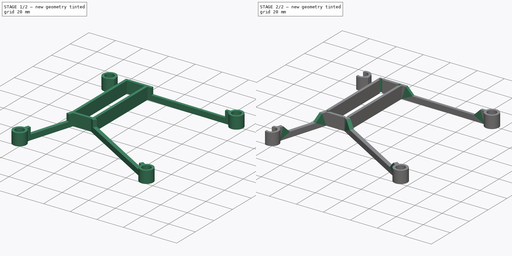
[diagram: build sequence overview — one tinted view per stage of 2, left to right]
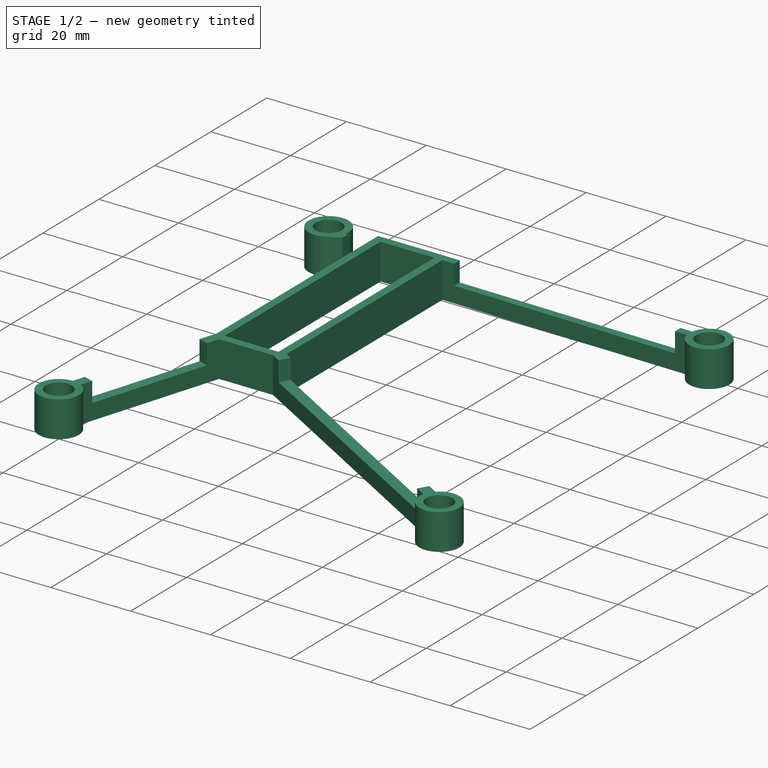
[diagram: stage 1 of 2 — iso view after this stage's code; geometry added in this stage tinted green]
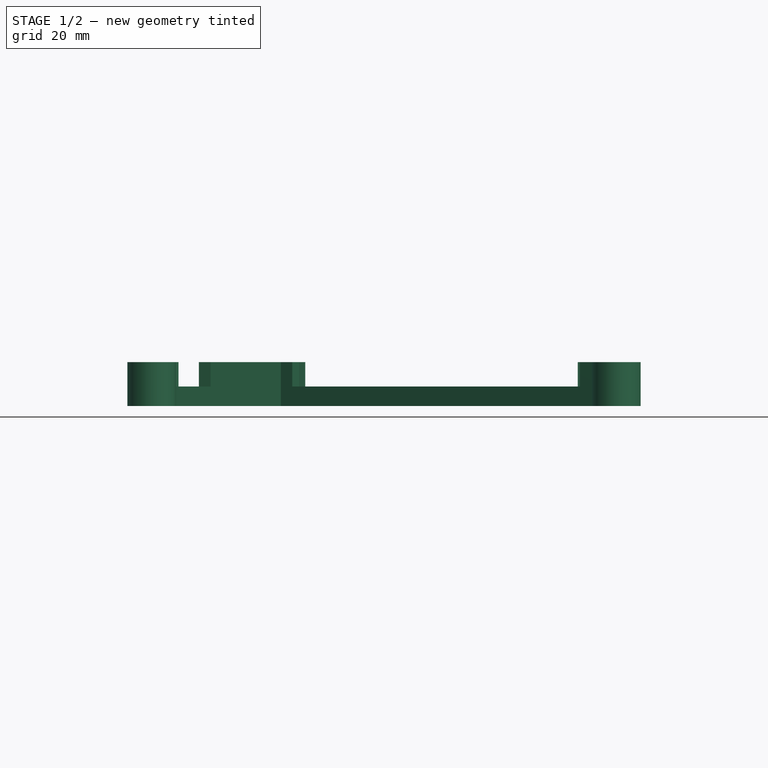
[diagram: stage 1 of 2 — front view after this stage's code; geometry added in this stage tinted green]
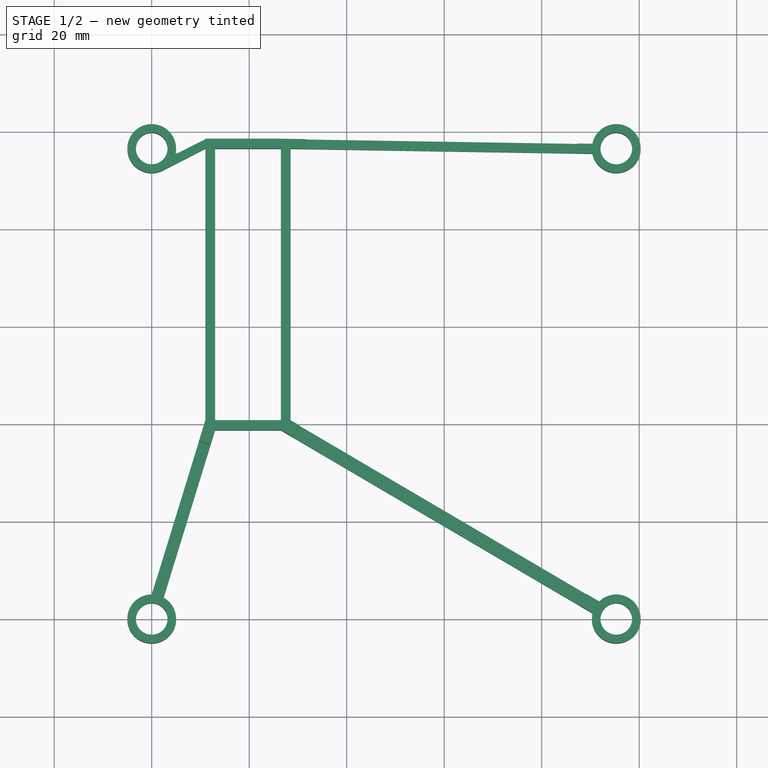
[diagram: stage 1 of 2 — top view after this stage's code; geometry added in this stage tinted green]
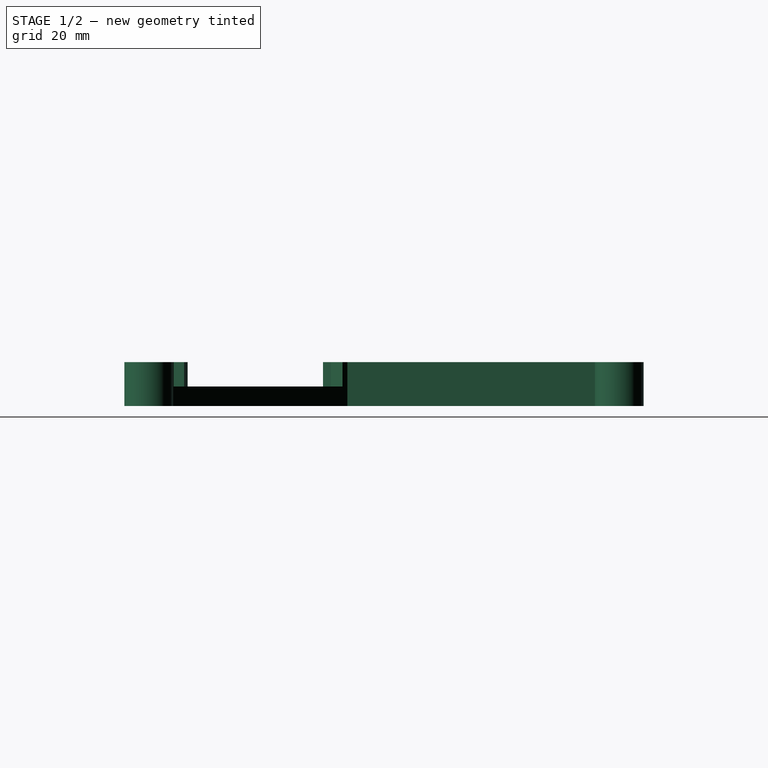
[diagram: stage 1 of 2 — right view after this stage's code; geometry added in this stage tinted green]
FCSTD DOCUMENT  (FreeCAD 0.17R13528 (Git))
Label: heatsink_mount_v0.3
License: CreativeCommons Attribution-ShareAlike
LicenseURL: http://creativecommons.org/licenses/by-sa/4.0/
objects: Sketcher::SketchObject×3, PartDesign::Pocket×2, PartDesign::Pad×1, PartDesign::Chamfer×1, PartDesign::Body×1
note: 11 computed .brp shape members not serialized (recipe doc carries the construction recipe); baked Part::Feature solids carry a one-line shape summary decoded from their .brp

FEATURE [Sketcher::SketchObject] Sketch
  MapMode = 5
  Support = -> [XY_Plane]
  sketch-geometry (36):
    g0: LineSegment [constr] StartX=0 StartY=0 StartZ=0 EndX=95.3 EndY=0 EndZ=0
    g1: LineSegment [constr] StartX=95.3 StartY=0 StartZ=0 EndX=95.3 EndY=96.5 EndZ=0
    g2: LineSegment [constr] StartX=95.3 StartY=96.5 StartZ=0 EndX=0 EndY=96.5 EndZ=0
    g3: LineSegment [constr] StartX=0 StartY=96.5 StartZ=0 EndX=0 EndY=0 EndZ=0
    g4: Circle CenterX=0 CenterY=96.5 CenterZ=0 NormalX=0 NormalY=0 NormalZ=1 AngleXU=0 Radius=3.25
    g5: Circle CenterX=95.3 CenterY=96.5 CenterZ=0 NormalX=0 NormalY=0 NormalZ=1 AngleXU=0 Radius=3.25
    g6: Circle CenterX=95.3 CenterY=0 CenterZ=0 NormalX=0 NormalY=0 NormalZ=1 AngleXU=0 Radius=3.25
    g7: Circle CenterX=0 CenterY=0 CenterZ=0 NormalX=0 NormalY=0 NormalZ=1 AngleXU=0 Radius=3.25
    g8: LineSegment StartX=13 StartY=96.5 StartZ=0 EndX=26.5 EndY=96.5 EndZ=0
    g9: LineSegment StartX=26.5 StartY=96.5 StartZ=0 EndX=26.5 EndY=40.75 EndZ=0
    g10: LineSegment StartX=26.5 StartY=40.75 StartZ=0 EndX=13 EndY=40.75 EndZ=0
    g11: LineSegment StartX=13 StartY=40.75 StartZ=0 EndX=13 EndY=96.5 EndZ=0
    g12: ArcOfCircle CenterX=0 CenterY=96.5 CenterZ=0 NormalX=0 NormalY=0 NormalZ=1 AngleXU=0 Radius=5 StartAngle=6.05571 EndAngle=11.4674
    g13: ArcOfCircle CenterX=95.3 CenterY=96.5 CenterZ=0 NormalX=0 NormalY=0 NormalZ=1 AngleXU=0 Radius=5 StartAngle=3.34295 EndAngle=9.22999
    g14: ArcOfCircle CenterX=95.3 CenterY=0 CenterZ=0 NormalX=0 NormalY=0 NormalZ=1 AngleXU=0 Radius=5 StartAngle=2.90081 EndAngle=8.62938
    g15: ArcOfCircle CenterX=0 CenterY=0 CenterZ=0 NormalX=0 NormalY=0 NormalZ=1 AngleXU=0 Radius=5 StartAngle=1.5708 EndAngle=7.34814
    g16: LineSegment StartX=2.27273 StartY=92.0464 StartZ=0 EndX=11 EndY=96.5 EndZ=0
    g17: LineSegment StartX=11 StartY=96.5 StartZ=0 EndX=11 EndY=40.75 EndZ=0
    g18: LineSegment StartX=11 StartY=40.75 StartZ=0 EndX=0 EndY=5 EndZ=0
    g19: LineSegment StartX=2.42272 StartY=4.37384 StartZ=0 EndX=13 EndY=38.75 EndZ=0
    g20: LineSegment StartX=13 StartY=38.75 StartZ=0 EndX=26.5 EndY=38.75 EndZ=0
    g21: LineSegment StartX=26.5 StartY=38.75 StartZ=0 EndX=90.4442 EndY=1.19232 EndZ=0
    g22: LineSegment StartX=91.8 StartY=3.57071 StartZ=0 EndX=28.5 EndY=40.75 EndZ=0
    g23: LineSegment StartX=28.5 StartY=40.75 StartZ=0 EndX=28.5 EndY=96.5 EndZ=0
    g24: LineSegment StartX=28.5 StartY=96.5 StartZ=0 EndX=90.401 EndY=95.5 EndZ=0
    g25: LineSegment StartX=90.3946 StartY=97.4678 StartZ=0 EndX=26.5 EndY=98.5 EndZ=0
    g26: LineSegment StartX=26.5 StartY=98.5 StartZ=0 EndX=11 EndY=98.5 EndZ=0
    g27: LineSegment StartX=11 StartY=98.5 StartZ=0 EndX=4.87119 EndY=95.3724 EndZ=0
    g28: LineSegment [constr] StartX=13 StartY=40.75 StartZ=0 EndX=11 EndY=40.75 EndZ=0
    g29: LineSegment [constr] StartX=11 StartY=40.75 StartZ=0 EndX=11 EndY=38.75 EndZ=0
    g30: LineSegment [constr] StartX=11 StartY=38.75 StartZ=0 EndX=13 EndY=38.75 EndZ=0
    g31: LineSegment [constr] StartX=13 StartY=38.75 StartZ=0 EndX=13 EndY=40.75 EndZ=0
    g32: LineSegment [constr] StartX=26.5 StartY=40.75 StartZ=0 EndX=28.5 EndY=40.75 EndZ=0
    g33: LineSegment [constr] StartX=28.5 StartY=40.75 StartZ=0 EndX=28.5 EndY=38.75 EndZ=0
    g34: LineSegment [constr] StartX=28.5 StartY=38.75 StartZ=0 EndX=26.5 EndY=38.75 EndZ=0
    g35: LineSegment [constr] StartX=26.5 StartY=38.75 StartZ=0 EndX=26.5 EndY=40.75 EndZ=0
  constraints (96):
    c: Coincident(g0,g1)
    c: Coincident(g1,g2)
    c: Coincident(g2,g3)
    c: Coincident(g3,g0)
    c: Horizontal(g0)
    c: Vertical(g1)
    c: Vertical(g3)
    c: Coincident(g0,g-1)
    c: DistanceX(g0,g0) = 95.3
    c: DistanceY(g3,g3) = 96.5
    c: Coincident(g0,g7)
    c: Coincident(g0,g6)
    c: Coincident(g1,g5)
    c: Coincident(g2,g4)
    c: Radius(g4) = 3.25
    c: Equal(g4,g5)
    c: Equal(g4,g6)
    c: Equal(g4,g7)
    c: Coincident(g8,g9)
    c: Coincident(g9,g10)
    c: Coincident(g10,g11)
    c: Coincident(g11,g8)
    c: Horizontal(g8)
    c: Horizontal(g10)
    c: Vertical(g9)
    c: Vertical(g11)
    c: DistanceY(g9,g9) = 55.75
    c: DistanceX(g8,g8) = 13.5
    c: DistanceX(g2,g8) = 13
    c: Coincident(g16,g17)
    c: Coincident(g17,g18)
    c: Coincident(g19,g20)
    c: Coincident(g20,g21)
    c: Coincident(g22,g23)
    c: Coincident(g23,g24)
    c: Coincident(g25,g26)
    c: Coincident(g26,g27)
    c: Coincident(g12,g27)
    c: Horizontal(g26)
    c: Vertical(g17)
    c: Vertical(g23)
    c: Horizontal(g20)
    c: Coincident(g15,g18)
    c: Coincident(g15,g19)
    c: Coincident(g14,g21)
    c: Coincident(g14,g22)
    c: Coincident(g13,g25)
    c: Coincident(g1,g13)
    c: Coincident(g2,g12)
    c: Coincident(g0,g15)
    c: Coincident(g0,g14)
    c: Radius(g14) = 5
    c: Equal(g15,g14)
    c: Equal(g14,g13)
    c: Equal(g13,g12)
    c: Tangent(g12,g16) = -1.5708
    c: Parallel(g19,g18)
    c: Parallel(g21,g22)
    c: DistanceY(g20,g9) = 2
    c: DistanceX(g9,g22) = 2
    c: DistanceY(g8,g25) = 2
    c: DistanceX(g17,g19) = 2
    c: Coincident(g28,g29)
    c: Coincident(g29,g30)
    c: Coincident(g30,g31)
    c: Coincident(g31,g28)
    c: Horizontal(g28)
    c: Horizontal(g30)
    c: Vertical(g29)
    c: Vertical(g31)
    c: Coincident(g32,g33)
    c: Coincident(g33,g34)
    c: Coincident(g34,g35)
    c: Coincident(g35,g32)
    c: Horizontal(g32)
    c: Horizontal(g34)
    c: Vertical(g33)
    c: Vertical(g35)
    c: Coincident(g9,g32)
    c: Coincident(g22,g32)
    c: Coincident(g20,g34)
    c: Coincident(g17,g28)
    c: Coincident(g10,g28)
    c: Coincident(g19,g30)
    c: DistanceY(g16) = 96.5
    c: DistanceY(g16,g26) = 2
    c: Parallel(g24,g25)
    c: Parallel(g27,g16)
    c: DistanceX(g16,g26) = 0
    c: DistanceX(g25,g8) = 0
    c: PointOnObject(g15,g3)
    c: DistanceX(g14,g0) = 3.5
    c: Horizontal(g2)
    c: Coincident(g13,g24)
    c: PointOnObject(g23,g2)
    c: DistanceY(g13,g1) = 1
FEATURE [PartDesign::Pad] Pad
  Length = 9
  Length2 = 100
  Profile = -> Sketch
  Refine = true
  Type = 0
FEATURE [Sketcher::SketchObject] Sketch001
  ExternalGeometry = -> [Pad]
  MapMode = 5
  Placement = pos=(0,0,9) rot=(0,0,1;0rad)
  sketch-geometry (16):
    g0: LineSegment StartX=31.5 StartY=98.4192 StartZ=0 EndX=87.401 EndY=97.5162 EndZ=0
    g1: LineSegment StartX=87.401 StartY=97.5162 StartZ=0 EndX=87.401 EndY=95.5485 EndZ=0
    g2: LineSegment StartX=87.401 StartY=95.5485 StartZ=0 EndX=31.5 EndY=96.4515 EndZ=0
    g3: LineSegment StartX=31.5 StartY=96.4515 StartZ=0 EndX=31.5 EndY=98.4192 EndZ=0
    g4: LineSegment StartX=11 StartY=96.5 StartZ=0 EndX=11 EndY=98.5 EndZ=0
    g5: LineSegment StartX=30.2245 StartY=39.7371 StartZ=0 EndX=89.2132 EndY=5.09007 EndZ=0
    g6: LineSegment StartX=89.2132 StartY=5.09007 StartZ=0 EndX=87.8268 EndY=2.72967 EndZ=0
    g7: LineSegment StartX=87.8268 StartY=2.72967 StartZ=0 EndX=28.8381 EndY=37.3767 EndZ=0
    g8: LineSegment StartX=28.8381 StartY=37.3767 StartZ=0 EndX=30.2245 EndY=39.7371 EndZ=0
    g9: LineSegment StartX=0.915787 StartY=7.97631 StartZ=0 EndX=3.30498 EndY=7.24117 EndZ=0
    g10: LineSegment StartX=3.30498 StartY=7.24117 StartZ=0 EndX=12.0769 EndY=35.75 EndZ=0
    g11: LineSegment StartX=12.0769 StartY=35.75 StartZ=0 EndX=9.68773 EndY=36.4851 EndZ=0
    g12: LineSegment StartX=9.68773 StartY=36.4851 StartZ=0 EndX=0.915787 EndY=7.97631 EndZ=0
    g13: LineSegment StartX=11 StartY=98.5 StartZ=0 EndX=5.5 EndY=95.6933 EndZ=0
    g14: LineSegment StartX=5.5 StartY=95.6933 StartZ=0 EndX=5.5 EndY=93.6933 EndZ=0
    g15: LineSegment StartX=5.5 StartY=93.6933 StartZ=0 EndX=11 EndY=96.5 EndZ=0
  constraints (47):
    c: Coincident(g0,g1)
    c: Coincident(g1,g2)
    c: Coincident(g2,g3)
    c: Coincident(g3,g0)
    c: Coincident(g5,g6)
    c: Coincident(g6,g7)
    c: Coincident(g7,g8)
    c: Coincident(g8,g5)
    c: Coincident(g9,g10)
    c: Coincident(g10,g11)
    c: Coincident(g11,g12)
    c: Coincident(g12,g9)
    c: Perpendicular(g8,g5)
    c: Perpendicular(g10,g11)
    c: Perpendicular(g9,g10)
    c: Vertical(g4)
    c: Vertical(g1)
    c: Vertical(g3)
    c: Coincident(g13,g14)
    c: Coincident(g14,g15)
    c: Coincident(g4,g15)
    c: Coincident(g4,g13)
    c: Parallel(g15,g13)
    c: DistanceX(g13,g13) = 5.5
    c: Vertical(g14)
    c: PointOnObject(g7,g-9)
    c: PointOnObject(g6,g-9)
    c: PointOnObject(g5,g-8)
    c: PointOnObject(g5,g-8)
    c: Distance(g5,g-8) = 2
    c: Distance(g-8,g5) = 3
    c: PointOnObject(g9,g-6)
    c: PointOnObject(g9,g-7)
    c: PointOnObject(g10,g-6)
    c: PointOnObject(g11,g-7)
    c: PointOnObject(g14,g-5)
    c: PointOnObject(g1,g-4)
    c: PointOnObject(g0,g-10)
    c: PointOnObject(g2,g-4)
    c: PointOnObject(g0,g-10)
    c: DistanceX(g-4,g2) = 3
    c: DistanceX(g1,g-4) = 3
    c: Coincident(g4,g-5)
    c: Coincident(g4,g-3)
    c: DistanceY(g10,g-6) = 3
    c: Distance(g-6,g9) = 3
    c: Perpendicular(g5,g6)
FEATURE [PartDesign::Pocket] Pocket
  BaseFeature = -> Pad
  Length = 5
  Length2 = 100
  Profile = -> Sketch001
  Refine = true
  Type = 0
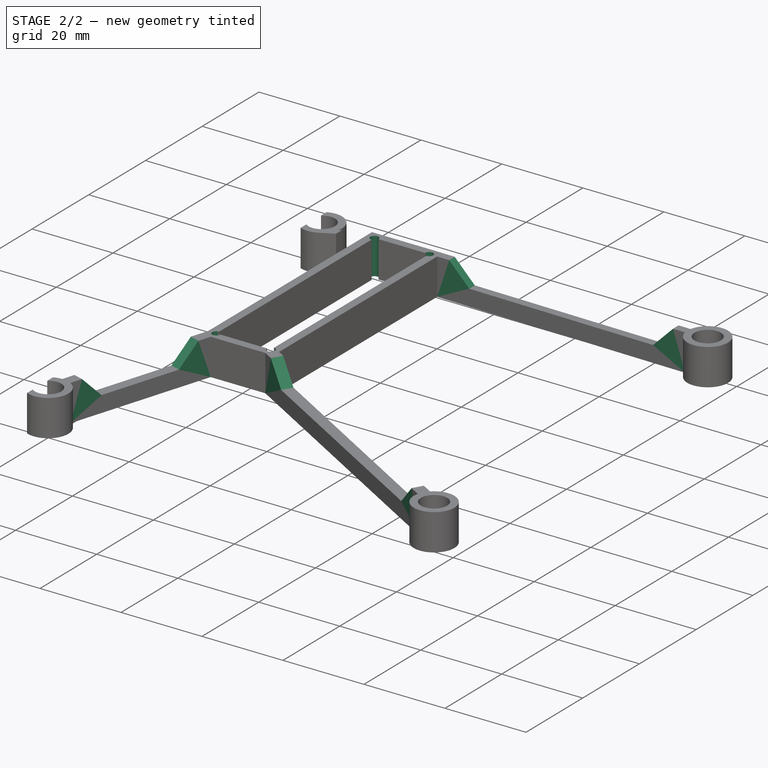
[diagram: stage 2 of 2 — iso view after this stage's code; geometry added in this stage tinted green]
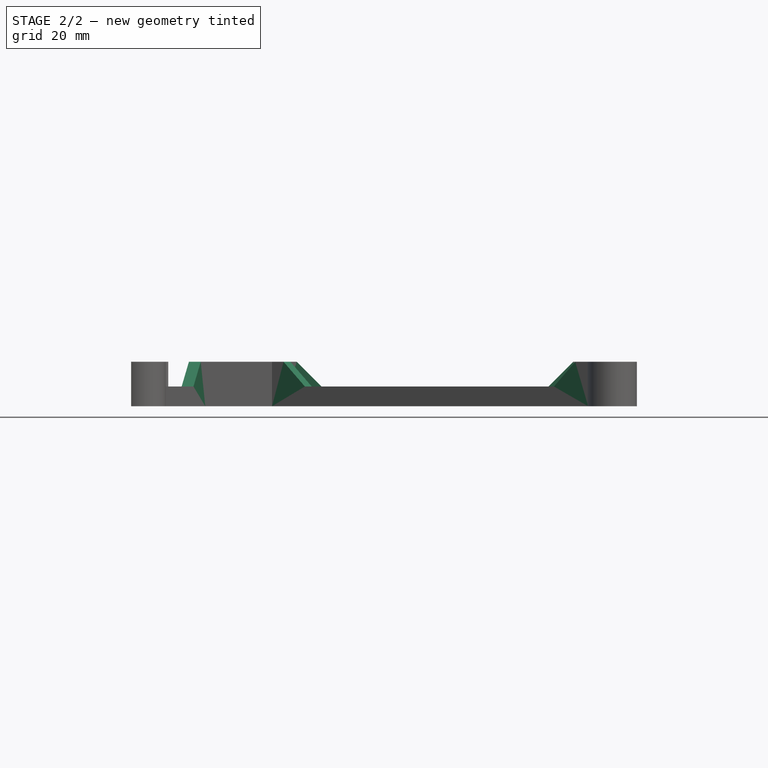
[diagram: stage 2 of 2 — front view after this stage's code; geometry added in this stage tinted green]
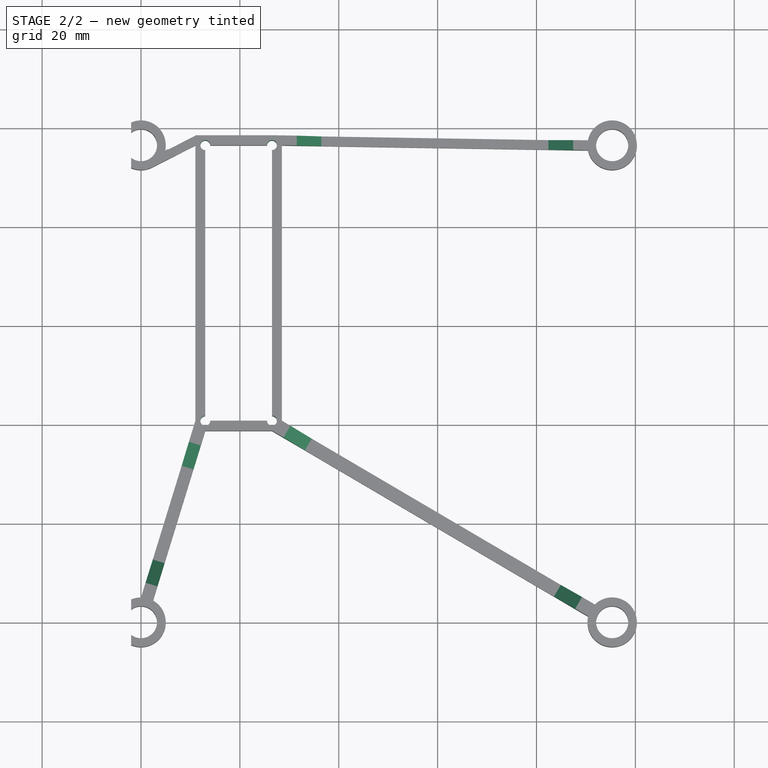
[diagram: stage 2 of 2 — top view after this stage's code; geometry added in this stage tinted green]
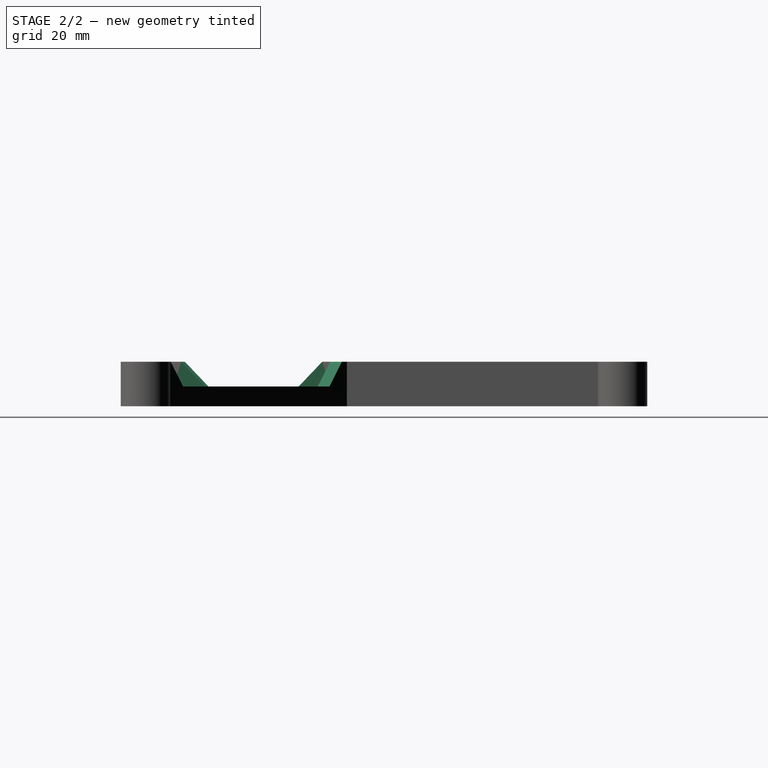
[diagram: stage 2 of 2 — right view after this stage's code; geometry added in this stage tinted green]
FEATURE [Sketcher::SketchObject] Sketch002
  ExternalGeometry = -> [Pocket]
  MapMode = 5
  Placement = pos=(0,0,9) rot=(0,0,1;0rad)
  sketch-geometry (8):
    g0: Circle CenterX=13 CenterY=96.5 CenterZ=0 NormalX=0 NormalY=0 NormalZ=1 AngleXU=0 Radius=1
    g1: Circle CenterX=26.5 CenterY=96.5 CenterZ=0 NormalX=0 NormalY=0 NormalZ=1 AngleXU=0 Radius=1
    g2: Circle CenterX=26.5 CenterY=40.75 CenterZ=0 NormalX=0 NormalY=0 NormalZ=1 AngleXU=0 Radius=1
    g3: Circle CenterX=13 CenterY=40.75 CenterZ=0 NormalX=0 NormalY=0 NormalZ=1 AngleXU=0 Radius=1
    g4: LineSegment StartX=-2 StartY=102 StartZ=0 EndX=-12 EndY=102 EndZ=0
    g5: LineSegment StartX=-12 StartY=102 StartZ=0 EndX=-12 EndY=-8 EndZ=0
    g6: LineSegment StartX=-12 StartY=-8 StartZ=0 EndX=-2 EndY=-8 EndZ=0
    g7: LineSegment StartX=-2 StartY=-8 StartZ=0 EndX=-2 EndY=102 EndZ=0
  constraints (20):
    c: Radius(g0) = 1
    c: Equal(g0,g1)
    c: Equal(g0,g3)
    c: Equal(g0,g2)
    c: Coincident(g3,g-4)
    c: Coincident(g2,g-4)
    c: Coincident(g1,g-3)
    c: Coincident(g0,g-3)
    c: Coincident(g4,g5)
    c: Coincident(g5,g6)
    c: Coincident(g6,g7)
    c: Coincident(g7,g4)
    c: Horizontal(g4)
    c: Horizontal(g6)
    c: Vertical(g5)
    c: Vertical(g7)
    c: DistanceY(g6) = -8
    c: DistanceX(g6,g6) = 10
    c: DistanceY(g7,g7) = 110
    c: DistanceX(g6) = -2
FEATURE [PartDesign::Pocket] Pocket001
  BaseFeature = -> Pocket
  Length = 5
  Length2 = 100
  Profile = -> Sketch002
  Refine = true
  Type = 1
FEATURE [PartDesign::Chamfer] Chamfer
  Base = -> Pocket001 [Edge144,Edge145,Edge148,Edge147,Edge151,Edge150]
  BaseFeature = -> Pocket001
  Size = 4.99
FEATURE [PartDesign::Body] Body
  Group = -> [Sketch,Sketch001,Sketch002,Pad,Pocket,Pocket001,Chamfer]
  Origin = -> Origin
  Tip = -> Chamfer
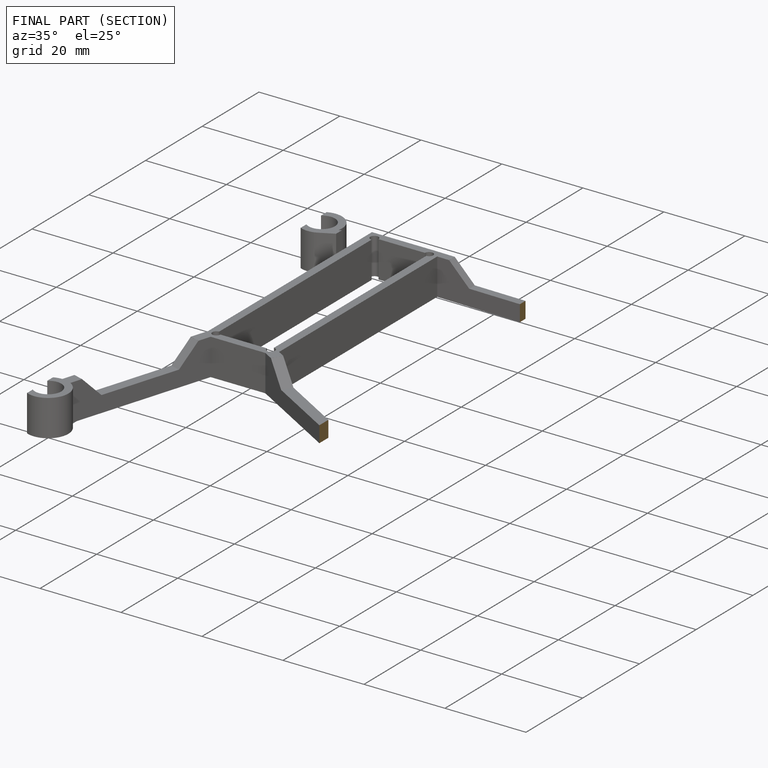
[diagram: finished part — half-section view (interior)]
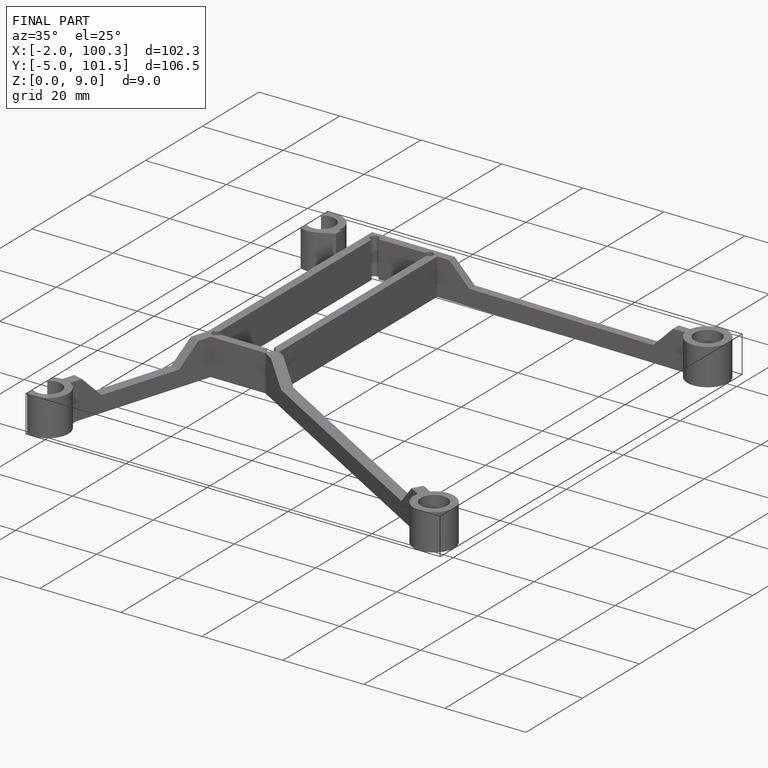
[diagram: finished part — iso view with bounding-box wireframe]
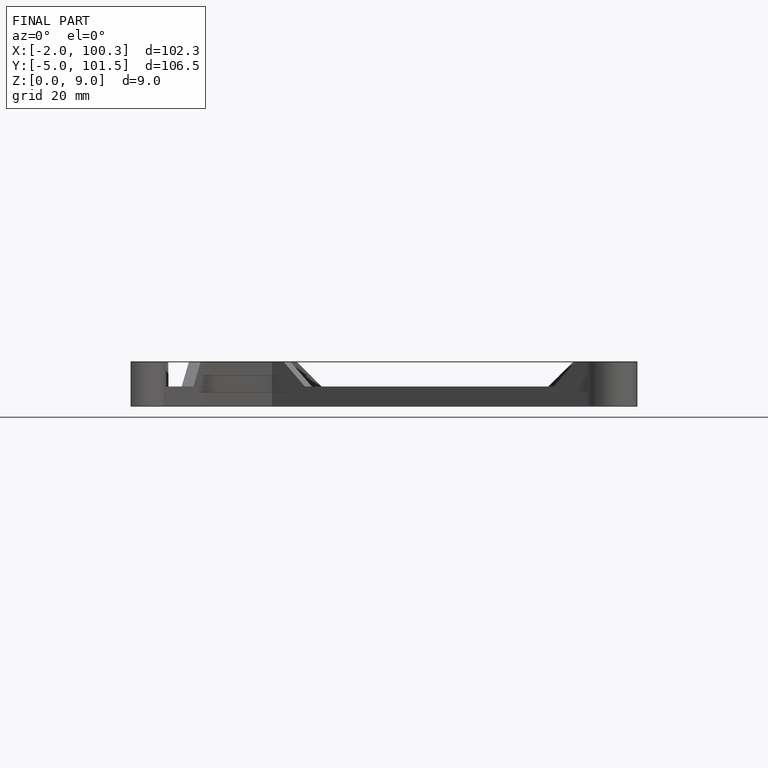
[diagram: finished part — front view with bounding-box wireframe]
